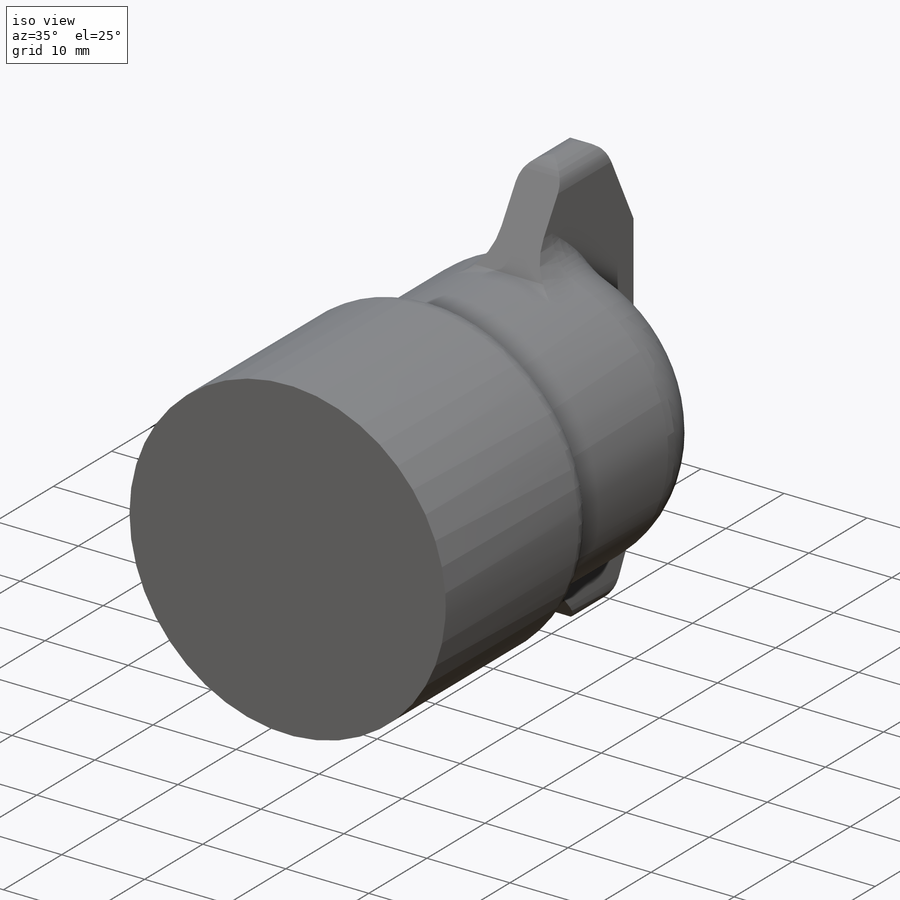
[diagram: iso view]
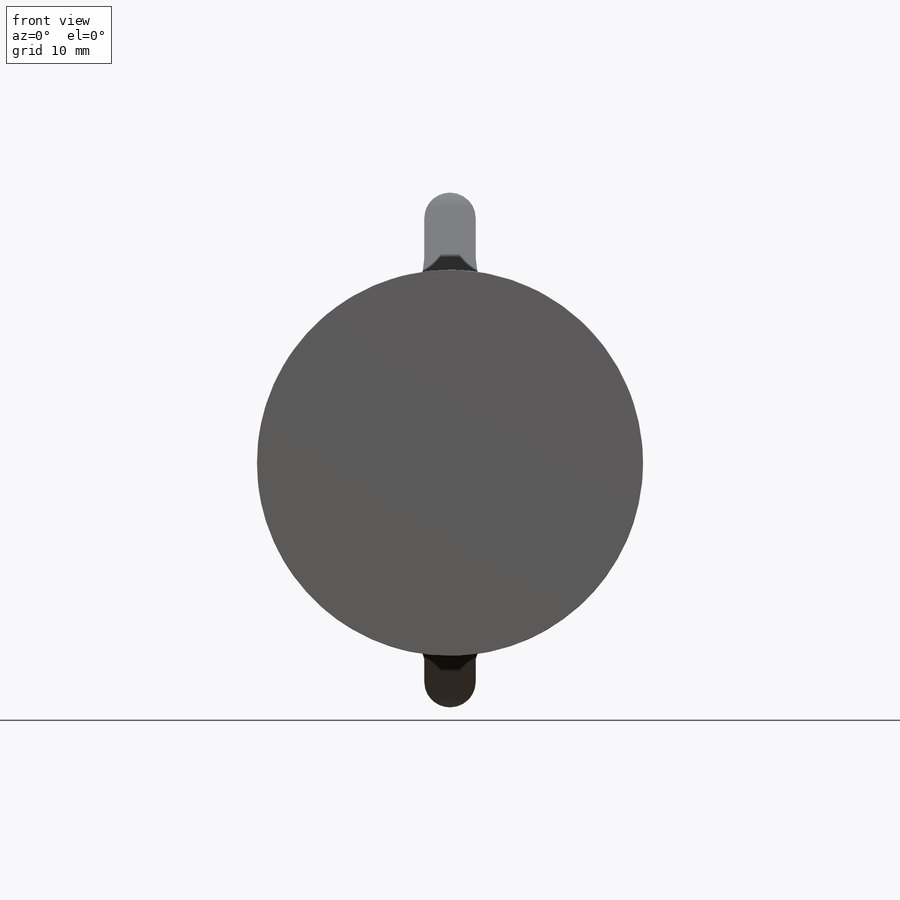
[diagram: front view]
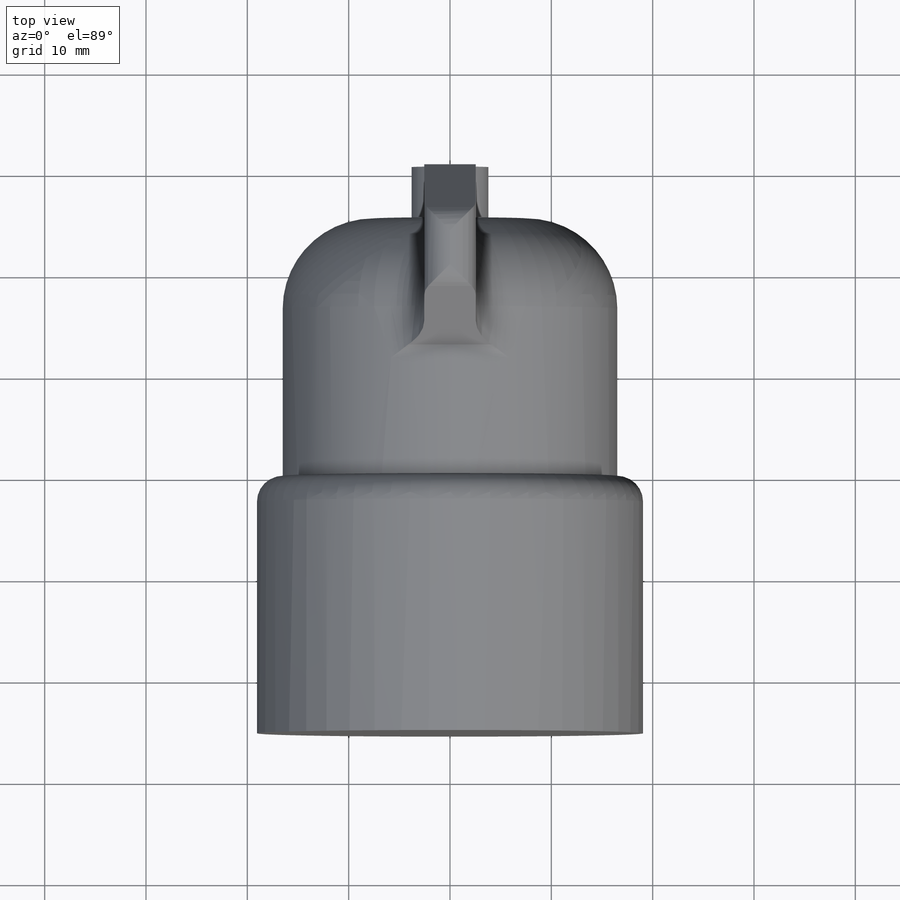
[diagram: top view]
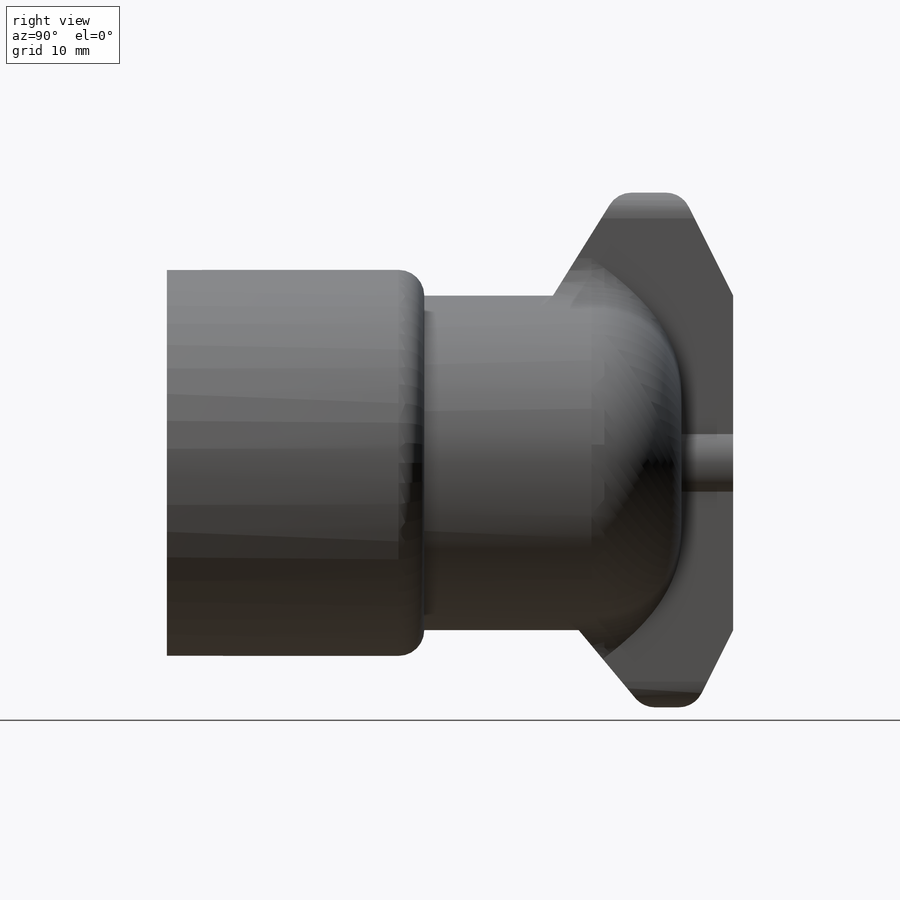
[diagram: right view]
SOLIDWORKS PART (.sldprt)
format: sldprt  version: not decoded by parser v0  size: 381,952 bytes
history: native  units: mm
features: sketch x5, fillet x5, extrude x4, material x1, cut_extrude x1 (+13 scaffold rows collapsed)
feature tree (29):
  scaffold x13  (default folders/planes/origin — collapsed)
  material  "Material <not specified>"
  sketch  "Sketch2"  dims[D1=38.1mm]
  extrude  "Boss-Extrude1"  Depth=25.4mm
  fillet  "Fillet1"  Radius=2.54mm
  sketch  "Sketch3"
  extrude  "Boss-Extrude2"  Depth=25.4mm
  sketch  "Sketch4"  dims[D1=10.16mm D2=6.35mm D3=6.35mm D4=5.08mm D5=2.54mm D6=6.35mm D7=7.62mm D8=5.08mm D9=~24.201107mm]
  extrude  "Boss-Extrude3"  Depth=5.08mm
  fillet  "Fillet2"  Radius=5.08mm
  fillet  "Fillet3"  Radius=1.27mm
  fillet  "Fillet4"  Radius=8.89mm
  fillet  "Fillet5"  Radius=2.54mm
  sketch  "Sketch5"  dims[D1=7.62mm]
  extrude  "Boss-Extrude4"  Depth=5.08mm
  sketch  "Sketch6"  dims[D1=6.35mm]
  cut_extrude  "Cut-Extrude1"  Depth=12.7mm
decode coverage: 14 of 15 modeling features carry decoded parameters
note: ~ marks probable driven/reference dimensions
note: suppression state not decoded; provenance and decode notes live in map.json
